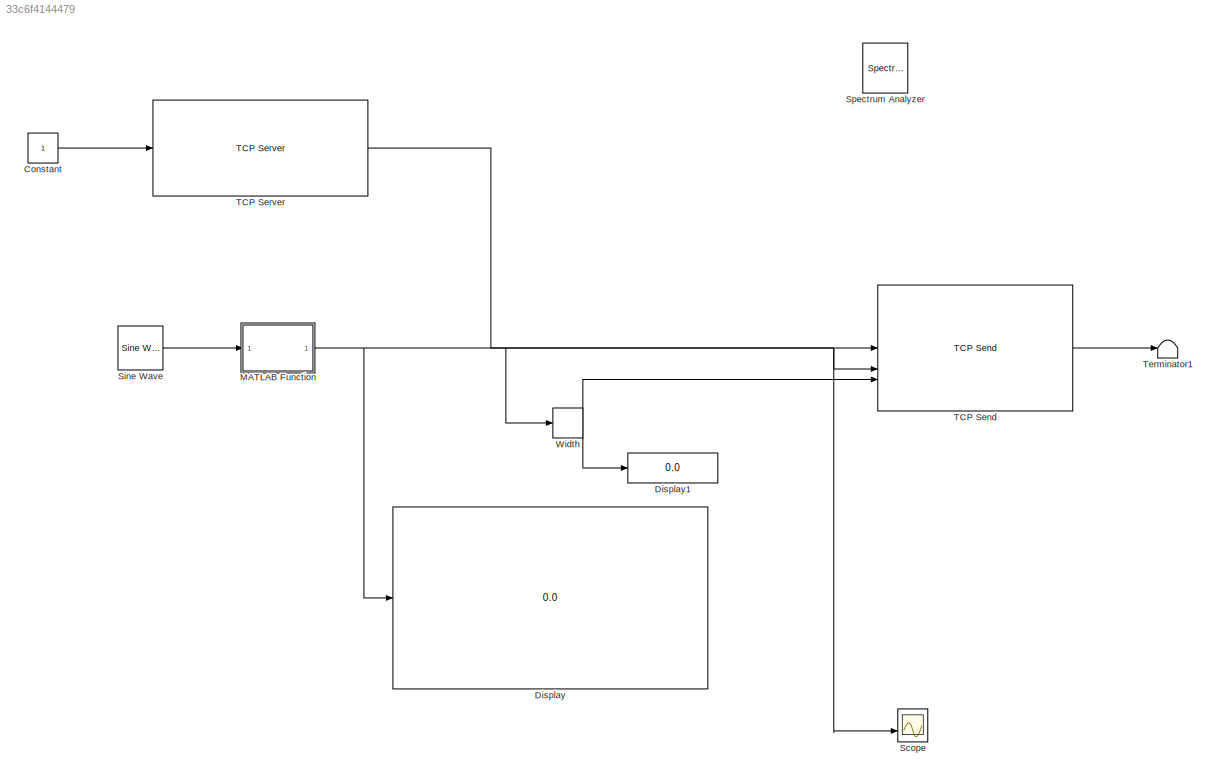
MODEL slx_33c6f4144479
KIND model
CONFIG AbsTol = auto
CONFIG EnableMultiTasking = off
CONFIG FixedStep = auto
CONFIG MaxStep = auto
CONFIG MinStep = auto
CONFIG RelTol = 1e-3
CONFIG SampleTimeConstraint = Unconstrained
CONFIG SolverName = VariableStepAuto
CONFIG StartTime = 0.0
CONFIG StopTime = 10.0
BLOCK [Constant] Constant
BLOCK [Display] Display
  Decimation = 1
BLOCK [Display] Display1
  Decimation = 1
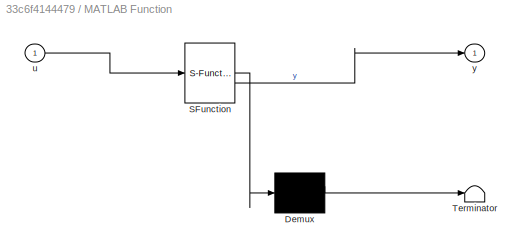
BLOCK [SubSystem] MATLAB Function
  ErrorFcn = Stateflow.Translate.translate
  PermitHierarchicalResolution = ExplicitOnly
  SFBlockType = MATLAB Function
  TreatAsAtomicUnit = on
BLOCK [Demux] MATLAB Function/ Demux 
  Outputs = 1
BLOCK [S-Function] MATLAB Function/ SFunction 
  EnableBusSupport = on
  FunctionName = sf_sfun
  PortCounts = [1 2]
  SFcnIsStateOwnerBlock = off
  SFunctionDeploymentMode = off
  Tag = Stateflow S-Function 2
BLOCK [Terminator] MATLAB Function/ Terminator 
BLOCK [Inport] MATLAB Function/u
BLOCK [Outport] MATLAB Function/y
BLOCK [Scope] Scope
  Floating = off
  NumInputPorts = 2
  ScopeSpecificationString = Simulink.scopes.TimeScopeBlockCfg('CurrentConfiguration', extmgr.ConfigurationSet(extmgr.Configuration('Core','General UI',true),extmgr.Configuration('Core','Source UI',true),extmgr.Configuration('Sources','WiredSimulink',true),extmgr.Configuration('Visuals','Time Domain',true,'SerializedDisplays',{struct('MinYLimReal','-0.0000024','MaxYLimReal','0.0000023','YLabelReal','','MinYLimMag','0.0000000'...<+2552ch>
BLOCK [Reference] Sine Wave  REF=dspsrcs4/Sine Wave
  SourceBlock = dspsrcs4/Sine Wave
  SourceType = Sine Wave
BLOCK [SpectrumAnalyzer] Spectrum Analyzer
  GraphicalSettings = {"GraphicalSettings":{"Style":{"BackgroundColor":[0.12941176470588237,0.12941176470588237,0.12941176470588237],"AxesColor":[0.07058823529411765,0.07058823529411765,0.07058823529411765],"LabelsColor":[0.8509803921568627,0.8509803921568627,0.8509803921568627],"PreserveColors":false,"Visible":[true],"LineStyle":["-"],"LineColor":[[1,0.9098039215686274,0.39215686274509803]],"LineWidth":[1.5],"Marker":...<+949ch>
  ScopeFrameLocation = window
  SelectedToolstripTab = spectrumAnalyzerToolstrip.estimationTab
  Span = 2000000
  WasSavedAsWebScope = on
  WindowPosition = [861.000000,533.000000,800.000000,500.000000,]
  YLimits = [-3603.44492261,-2802.67938425]
BLOCK [Reference] TCP Send  REF=slrealtimeiplib/TCP Send
  SourceBlock = slrealtimeiplib/TCP Send
  SourceType = slrealtimetcpsend
BLOCK [Reference] TCP Server  REF=slrealtimeiplib/TCP Server
  Priority = -1
  SourceBlock = slrealtimeiplib/TCP Server
  SourceType = slrealtimetcpserver
BLOCK [Terminator] Terminator1
BLOCK [Width] Width
LINE Constant:1 -> TCP Server:1
NET MATLAB Function:1 -> Display:1, Scope:2, TCP Send:2, Width:1
LINE Sine Wave:1 -> MATLAB Function:1
LINE TCP Send:1 -> Terminator1:1
LINE TCP Server:1 -> TCP Send:1
NET Width:1 -> Display1:1, TCP Send:3
note: NET lines group one-source signal fan-out (src -> all destinations, sorted); 1:1 wires keep LINE
CHART MATLAB Function states=1 transitions=1
  STATE_LABEL 'eML_blk_kernel()'
  STATE_LABEL 'SCRIPT:\nfunction y = fcn(u)\n\ny = typecast(u,"uint8");\n'
CHART  states=0 transitions=0
